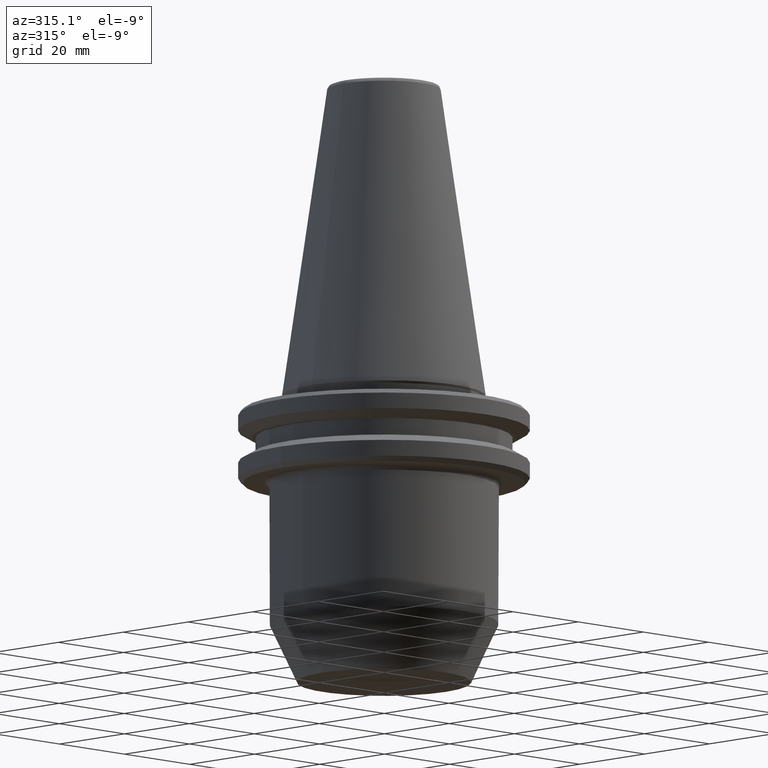
[diagram: clean part render]
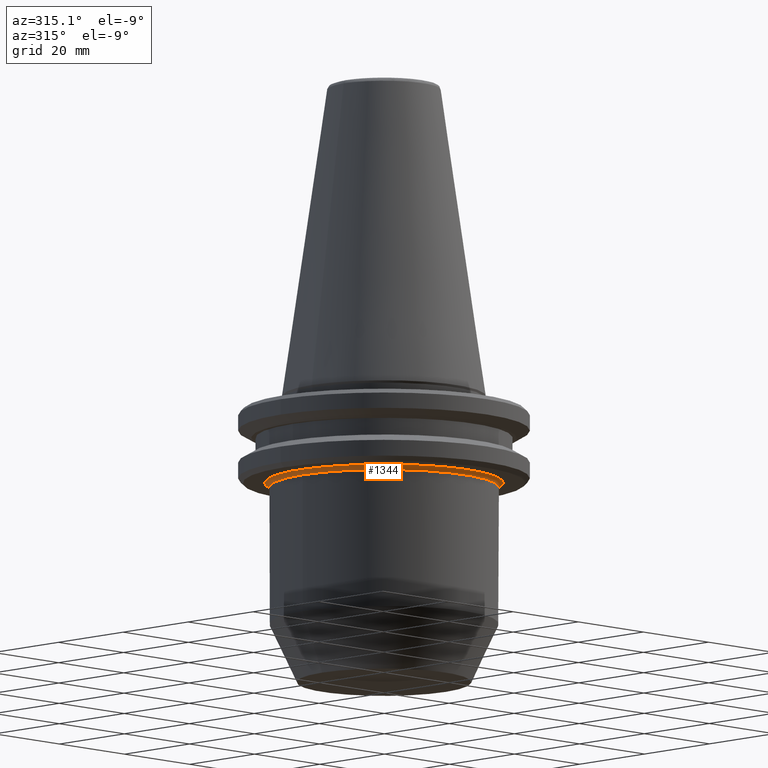
[diagram: same view with one face highlighted and labeled with its STEP entity id]
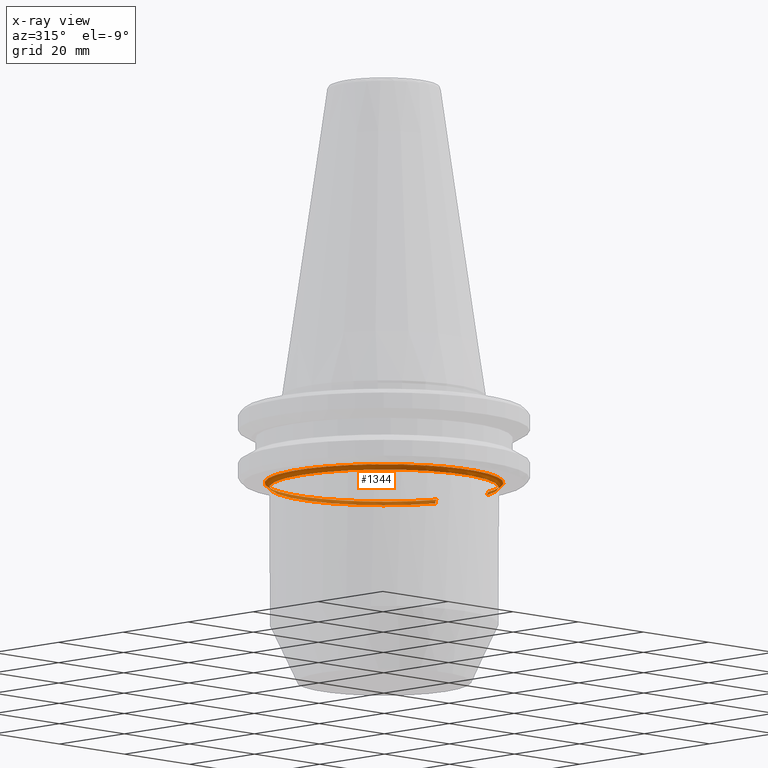
[diagram: x-ray of the same camera — body ghosted, the highlighted face saturated]
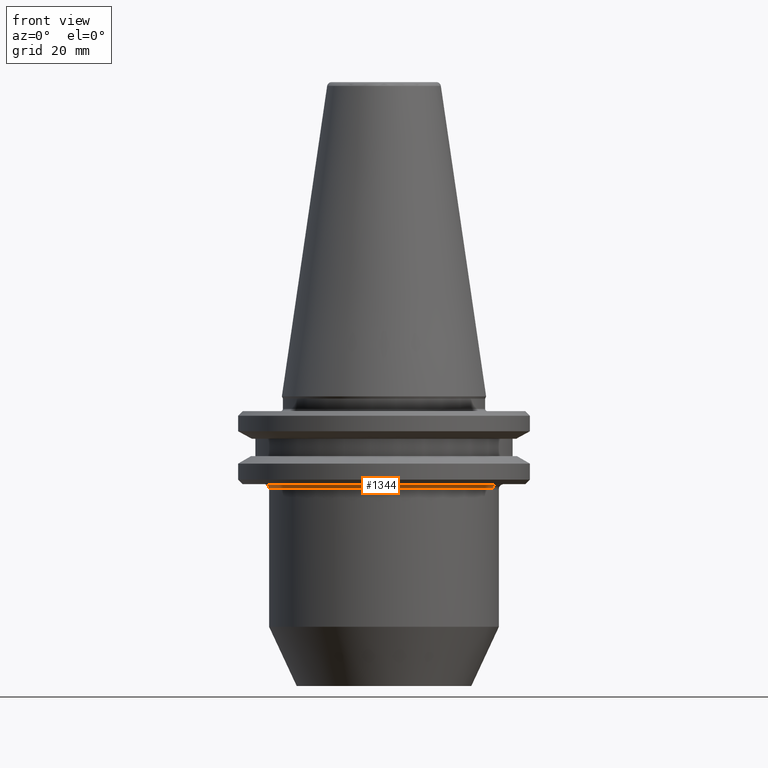
[diagram: same view with one face highlighted and labeled with its STEP entity id]
A machine part, auxiliary view. The second image highlights one B-rep face of the part: STEP entity #1344.
The next image is the same camera in x-ray: the body ghosted, the highlighted face saturated — about 30% of this face is hidden behind the body in this view.
A second angle (front view) of the same face is appended — the face is thin or edge-on in the first view.
In plain terms, the highlighted face is a freeform B-spline surface patch.
Its self-contained STEP definition (entity closure, byte-faithful):
#2 = CARTESIAN_POINT ( 'NONE',  ( 21.08986678564064800, -15.20589655215031600, -19.10000000000000100 ) ) ;
#4 = CARTESIAN_POINT ( 'NONE',  ( 21.06357977021266900, -15.24229216683390600, -19.10000000000000500 ) ) ;
#5 = CARTESIAN_POINT ( 'NONE',  ( 21.01217869184344200, -15.31307514466165100, -19.10000000000000500 ) ) ;
#8 = CARTESIAN_POINT ( 'NONE',  ( 20.93482601209489900, -15.41903522698955700, -19.10000000000000100 ) ) ;
#10 = CARTESIAN_POINT ( 'NONE',  ( 20.75257899065204400, -15.66477472819203400, -19.10000000000000900 ) ) ;
#11 = CARTESIAN_POINT ( 'NONE',  ( 20.38105520631459200, -16.15025096701302200, -19.10000000000000500 ) ) ;
#12 = CARTESIAN_POINT ( 'NONE',  ( 19.60988867183271400, -17.09719239031935300, -19.10000000000000500 ) ) ;
#15 = CARTESIAN_POINT ( 'NONE',  ( 18.90068484375061100, -17.86769466000643900, -19.10000000000000500 ) ) ;
#18 = CARTESIAN_POINT ( 'NONE',  ( 18.34468000199737500, -18.42499045855544200, -19.10000000000000500 ) ) ;
#24 = CARTESIAN_POINT ( 'NONE',  ( 18.28089176897799100, -18.48828909787250700, -19.10000000000000500 ) ) ;
#26 = CARTESIAN_POINT ( 'NONE',  ( 18.15444972419174300, -18.61247392118095700, -19.10000000000000100 ) ) ;
#29 = CARTESIAN_POINT ( 'NONE',  ( 17.96391116099587700, -18.79771558474064700, -19.10000000000000500 ) ) ;
#31 = CARTESIAN_POINT ( 'NONE',  ( 24.02038785661411100, -6.929716243673013300, -19.51421356237310400 ) ) ;
#32 = CARTESIAN_POINT ( 'NONE',  ( 17.51319270809000300, -19.22269713322589300, -19.10000000000000500 ) ) ;
#33 = CARTESIAN_POINT ( 'NONE',  ( 16.58724191381627100, -20.04366423091353200, -19.10000000000000500 ) ) ;
#36 = CARTESIAN_POINT ( 'NONE',  ( 15.75154599564680100, -20.69764288730368000, -19.10000000000001200 ) ) ;
#37 = CARTESIAN_POINT ( 'NONE',  ( 13.83078948215775500, -45.85744366741297300, -19.10000000000000500 ) ) ;
#40 = CARTESIAN_POINT ( 'NONE',  ( 14.02412241425182900, -21.93932363029458800, -19.09999999999999800 ) ) ;
#44 = CARTESIAN_POINT ( 'NONE',  ( -18.99261454395822600, -17.75636746634904400, -19.10000000000000500 ) ) ;
#46 = CARTESIAN_POINT ( 'NONE',  ( -19.17139524099740200, -17.56451807996877100, -19.09999999999999800 ) ) ;
#48 = CARTESIAN_POINT ( 'NONE',  ( -19.58137120720936900, -17.11104614209958200, -19.10000000000000500 ) ) ;
#52 = CARTESIAN_POINT ( 'NONE',  ( -20.37260716544883000, -16.18080878776686800, -19.10000000000000900 ) ) ;
#53 = CARTESIAN_POINT ( 'NONE',  ( -21.00158203105213100, -15.34353080646283700, -19.09999999999999800 ) ) ;
#57 = CARTESIAN_POINT ( 'NONE',  ( -21.44869948809650500, -14.69560648168966900, -19.10000000000000500 ) ) ;
#58 = CARTESIAN_POINT ( 'NONE',  ( -21.49550636322783200, -14.62704469490636000, -19.10000000000001200 ) ) ;
#64 = CARTESIAN_POINT ( 'NONE',  ( -21.59090650262529500, -14.48586589484176400, -19.10000000000000500 ) ) ;
#65 = CARTESIAN_POINT ( 'NONE',  ( -21.73292025853827500, -14.27347227310506200, -19.10000000000000500 ) ) ;
#93 = CARTESIAN_POINT ( 'NONE',  ( -24.87081751016880900, -7.579078860645310600, -19.10000000000006200 ) ) ;
#94 = CARTESIAN_POINT ( 'NONE',  ( -24.67946047880618500, -8.207018732206732300, -19.10000000000000900 ) ) ;
#95 = B_SPLINE_CURVE_WITH_KNOTS ( 'NONE', 3,
 ( #883, #1216, #185, #1118, #987, #763, #1510, #936, #697, #797 ),
 .UNSPECIFIED., .F., .F.,
 ( 4, 2, 2, 2, 4 ),
 ( 0.0000000000000000000, 0.0003999521369544677000, 0.0007999042739089354000, 0.001199856410863403200, 0.001599808547817870800 ),
 .UNSPECIFIED. ) ;
#98 = CARTESIAN_POINT ( 'NONE',  ( -24.35774771690617500, -9.135490331354942500, -19.10000000000000500 ) ) ;
#100 = CARTESIAN_POINT ( 'NONE',  ( 21.31193190923805100, 14.89325728726105800, -19.09999999999999800 ) ) ;
#106 = CARTESIAN_POINT ( 'NONE',  ( 13.71377673508790800, 22.10921522283393200, -19.10000000000000500 ) ) ;
#111 = CARTESIAN_POINT ( 'NONE',  ( 7.693485881876853200, 24.83570103653474000, -19.10000000000000500 ) ) ;
#113 = CARTESIAN_POINT ( 'NONE',  ( -23.56816878157279800, -10.97967670554026800, -19.10000000000000900 ) ) ;
#114 = CARTESIAN_POINT ( 'NONE',  ( -3.024413081520043200, 25.82720100315830400, -19.10000000000000900 ) ) ;
#116 = CARTESIAN_POINT ( 'NONE',  ( -25.00000000000000000, 3.061616997868383400E-015, -20.10000000000000900 ) ) ;
#117 = CARTESIAN_POINT ( 'NONE',  ( -23.68855141308448600, -10.71916111727049200, -19.10000000000000900 ) ) ;
#119 = CARTESIAN_POINT ( 'NONE',  ( -8.787973090625419200, 24.47982668187035300, -19.10000000000000900 ) ) ;
#120 = CIRCLE ( 'NONE', #1054, 25.00000000000000000 ) ;
#121 = CARTESIAN_POINT ( 'NONE',  ( -23.92173103535806100, -10.19519033268852900, -19.10000000000000500 ) ) ;
#124 = CARTESIAN_POINT ( 'NONE',  ( 9.309139455098502900, -24.29406549653491600, -19.10000000000000500 ) ) ;
#126 = CARTESIAN_POINT ( 'NONE',  ( -18.50462024641615600, 18.26437132208178200, -19.10000000000000500 ) ) ;
#127 = CARTESIAN_POINT ( 'NONE',  ( 8.321525427968865100, -24.64229291214120100, -19.10000000000000100 ) ) ;
#128 = CARTESIAN_POINT ( 'NONE',  ( 7.569170516763039200, -24.87398675893136600, -19.10000000000000500 ) ) ;
#130 = CARTESIAN_POINT ( 'NONE',  ( 11.22663073801722800, -23.45145528720430400, -19.10000000000000100 ) ) ;
#131 = CARTESIAN_POINT ( 'NONE',  ( -22.90905400916465600, 12.30373866754533900, -19.10000000000000100 ) ) ;
#132 = CARTESIAN_POINT ( 'NONE',  ( 10.98991607323609700, -23.56430426665612300, -19.10000000000000500 ) ) ;
#135 = CARTESIAN_POINT ( 'NONE',  ( 10.43418557474635300, -23.81902117686026400, -19.10000000000001200 ) ) ;
#136 = EDGE_CURVE ( 'NONE', #290, #1049, #369, .T. ) ;
#137 = CARTESIAN_POINT ( 'NONE',  ( 12.81200440084446700, -22.66860169791274900, -19.10000000000000500 ) ) ;
#139 = CARTESIAN_POINT ( 'NONE',  ( 11.46168780979420800, -23.33746934526750700, -19.10000000000000500 ) ) ;
#146 = CARTESIAN_POINT ( 'NONE',  ( -18.87274369892771000, -17.88371245063601800, -19.10000000000000100 ) ) ;
#147 = CARTESIAN_POINT ( 'NONE',  ( -15.00607522852591900, -21.24432462045455900, -19.10000000000000500 ) ) ;
#148 = CARTESIAN_POINT ( 'NONE',  ( -14.13114984464067100, -21.84480886108765300, -19.10000000000000500 ) ) ;
#149 = CARTESIAN_POINT ( 'NONE',  ( -13.06982959351578100, -22.48118231550234500, -19.10000000000000900 ) ) ;
#151 = CARTESIAN_POINT ( 'NONE',  ( -12.52902597547198700, -22.78332116946204500, -19.10000000000000500 ) ) ;
#152 = CARTESIAN_POINT ( 'NONE',  ( -25.00000000000000400, 38.67962063333698800, -20.10000000000000100 ) ) ;
#153 = B_SPLINE_CURVE_WITH_KNOTS ( 'NONE', 3,
 ( #93, #94, #98, #121, #117, #113, #217, #214, #212, #222, #221, #218, #65, #64, #58, #57, #53, #52, #48, #46, #44, #146, #238, #230, #227, #147, #148, #149, #151, #154, #157, #252, #249, #241, #162, #256, #258, #261, #167, #169, #279, #277, #275, #271, #269, #263, #289, #286, #283, #295, #294, #291, #308, #307, #300, #322, #314, #309, #604, #613, #743, #633, #630, #717, #128, #127, #124, #135, #132, #130, #172, #139, #137, #40, #36, #33, #32, #29, #26, #24, #18, #15, #12, #11, #10, #8, #5, #4, #2, #1143, #646, #956, #416, #236, #701, #273, #1240, #1092, #1036, #1502 ),
 .UNSPECIFIED., .F., .F.,
 ( 4, 1, 1, 1, 1, 2, 2, 1, 1, 1, 2, 2, 1, 1, 1, 2, 2, 2, 1, 1, 1, 2, 2, 1, 1, 1, 1, 2, 2, 1, 1, 1, 1, 2, 2, 2, 1, 1, 1, 1, 2, 2, 1, 1, 1, 2, 2, 1, 1, 1, 2, 2, 2, 1, 1, 1, 2, 2, 1, 1, 1, 1, 2, 2, 1, 1, 1, 1, 2, 2, 4 ),
 ( 0.0000000000000000000, 0.03124999999999878600, 0.04687499999999818200, 0.05468749999999789100, 0.05859374999999766900, 0.06054687499999759200, 0.06249999999999751600, 0.09374999999999612800, 0.1093749999999955000, 0.1171874999999951600, 0.1210937499999949800, 0.1249999999999948000, 0.1562499999999931200, 0.1718749999999922300, 0.1796874999999917300, 0.1835937499999915900, 0.1874999999999914500, 0.2499999999999897900, 0.2812499999999890100, 0.2968749999999885600, 0.3046874999999884000, 0.3085937499999882300, 0.3124999999999880700, 0.3437499999999866200, 0.3593749999999859600, 0.3671874999999855700, 0.3710937499999852900, 0.3730468749999852300, 0.3749999999999851800, 0.4062499999999849600, 0.4218749999999848500, 0.4296874999999847300, 0.4335937499999846800, 0.4355468749999846800, 0.4374999999999846800, 0.4999999999999850100, 0.5312499999999852300, 0.5468749999999853500, 0.5546874999999853500, 0.5585937499999853500, 0.5605468749999854600, 0.5624999999999854600, 0.5937499999999860100, 0.6093749999999863400, 0.6171874999999864600, 0.6210937499999865700, 0.6249999999999865700, 0.6562499999999870100, 0.6718749999999872300, 0.6796874999999873400, 0.6835937499999874500, 0.6874999999999874500, 0.7499999999999896700, 0.7812499999999909000, 0.7968749999999913400, 0.8046874999999915600, 0.8085937499999917800, 0.8124999999999920100, 0.8437499999999927800, 0.8593749999999931200, 0.8671874999999932300, 0.8710937499999933400, 0.8730468749999933400, 0.8749999999999934500, 0.9062499999999956700, 0.9218749999999966700, 0.9296874999999973400, 0.9335937499999975600, 0.9355468749999977800, 0.9374999999999978900, 1.000000000000000000 ),
 .UNSPECIFIED. ) ;
#154 = CARTESIAN_POINT ( 'NONE',  ( -12.29507939077864100, -22.90937041974884600, -19.10000000000000100 ) ) ;
#157 = CARTESIAN_POINT ( 'NONE',  ( -12.13863197753158500, -22.99263906883302500, -19.10000000000000100 ) ) ;
#160 = CARTESIAN_POINT ( 'NONE',  ( 13.51917837060695300, 44.82426410723565600, -19.10000000000000500 ) ) ;
#162 = CARTESIAN_POINT ( 'NONE',  ( -9.277455411015266100, -24.29293804208997500, -19.10000000000000500 ) ) ;
#167 = CARTESIAN_POINT ( 'NONE',  ( -8.206333344085546600, -24.67099422968122000, -19.10000000000000100 ) ) ;
#169 = CARTESIAN_POINT ( 'NONE',  ( -8.163719542336055600, -24.68512617397029300, -19.09999999999999800 ) ) ;
#172 = CARTESIAN_POINT ( 'NONE',  ( 11.38411705923635800, -23.37540383659991900, -19.10000000000000500 ) ) ;
#185 = CARTESIAN_POINT ( 'NONE',  ( 24.45486838116941900, -8.050107080330933600, -19.12432824542802100 ) ) ;
#205 = ORIENTED_EDGE ( 'NONE', *, *, #491, .F. ) ;
#212 = CARTESIAN_POINT ( 'NONE',  ( -23.46367537207778000, -11.20079061624733700, -19.10000000000000100 ) ) ;
#214 = CARTESIAN_POINT ( 'NONE',  ( -23.48064599843652500, -11.16516434791484600, -19.10000000000000100 ) ) ;
#217 = CARTESIAN_POINT ( 'NONE',  ( -23.51576347798745200, -11.09101128536561200, -19.10000000000000100 ) ) ;
#218 = CARTESIAN_POINT ( 'NONE',  ( -22.05668051671936100, -13.77350920424072600, -19.10000000000000500 ) ) ;
#221 = CARTESIAN_POINT ( 'NONE',  ( -22.67378034395125800, -12.75607126059725800, -19.10000000000000500 ) ) ;
#222 = CARTESIAN_POINT ( 'NONE',  ( -23.15057330021246800, -11.85396135590606000, -19.10000000000000100 ) ) ;
#227 = CARTESIAN_POINT ( 'NONE',  ( -16.70955574495307900, -19.96999443291344200, -19.10000000000000500 ) ) ;
#230 = CARTESIAN_POINT ( 'NONE',  ( -17.76944083940506400, -19.03312722494909100, -19.10000000000000500 ) ) ;
#232 = CARTESIAN_POINT ( 'NONE',  ( 24.17987589767861300, 9.596387810395482300, -19.10000000000000500 ) ) ;
#235 = CIRCLE ( 'NONE', #1426, 25.00000000000000000 ) ;
#236 = CARTESIAN_POINT ( 'NONE',  ( 23.09226670845448800, -11.94822560283492600, -19.10000000000000500 ) ) ;
#237 = CARTESIAN_POINT ( 'NONE',  ( 21.16576763980792500, 15.10025959422688200, -19.10000000000000100 ) ) ;
#238 = CARTESIAN_POINT ( 'NONE',  ( -18.81324768613971400, -17.94629416872470200, -19.10000000000000500 ) ) ;
#239 = CARTESIAN_POINT ( 'NONE',  ( 12.09411975201280000, 23.01713454861715000, -19.10000000000000500 ) ) ;
#241 = CARTESIAN_POINT ( 'NONE',  ( -10.41240086286569200, -23.84205590179272200, -19.10000000000000900 ) ) ;
#243 = CARTESIAN_POINT ( 'NONE',  ( 6.015060941970268100, 25.31080303800463600, -19.10000000000000500 ) ) ;
#247 = CARTESIAN_POINT ( 'NONE',  ( -3.876893395368816700, 25.70956239486193700, -19.10000000000000500 ) ) ;
#249 = CARTESIAN_POINT ( 'NONE',  ( -11.36044160209599800, -23.39723844028214500, -19.10000000000000500 ) ) ;
#252 = CARTESIAN_POINT ( 'NONE',  ( -12.05908733248370100, -23.03445181637846100, -19.10000000000000500 ) ) ;
#253 =( BOUNDED_SURFACE ( )  B_SPLINE_SURFACE ( 3, 3, ( 
 ( #1222, #1336, #152, #1000, #293, #1113, #417 ),
 ( #1229, #537, #1338, #657, #1444, #770, #31 ),
 ( #894, #160, #1004, #304, #1121, #423, #1233 ),
 ( #543, #1342, #662, #1450, #778, #37, #898 ) ),
 .UNSPECIFIED., .F., .F., .F. ) 
 B_SPLINE_SURFACE_WITH_KNOTS ( ( 4, 4 ),
 ( 4, 3, 4 ),
 ( 0.0000000000000000000, 1.000000000000000000 ),
 ( 0.0000000000000000000, 0.5000000000000000000, 1.000000000000000000 ),
 .UNSPECIFIED. ) 
 GEOMETRIC_REPRESENTATION_ITEM ( )  RATIONAL_B_SPLINE_SURFACE ( (
 ( 1.000000000000000000, 0.4266481954763141100, 0.4266481954763141100, 1.000000000000000000, 0.4266481954763141100, 0.4266481954763141100, 1.000000000000000000),
 ( 0.8047378541243649400, 0.3433399532936415900, 0.3433399532936415900, 0.8047378541243649400, 0.3433399532936415900, 0.3433399532936415900, 0.8047378541243649400),
 ( 0.8047378541243649400, 0.3433399532936415900, 0.3433399532936415900, 0.8047378541243649400, 0.3433399532936415900, 0.3433399532936415900, 0.8047378541243649400),
 ( 1.000000000000000000, 0.4266481954763141100, 0.4266481954763141100, 1.000000000000000000, 0.4266481954763141100, 0.4266481954763141100, 1.000000000000000000) ) ) 
 REPRESENTATION_ITEM ( '' )  SURFACE ( )  );
#254 = CARTESIAN_POINT ( 'NONE',  ( -10.88461865241911800, 23.61658474934612400, -19.10000000000000500 ) ) ;
#256 = CARTESIAN_POINT ( 'NONE',  ( -8.702758204402957900, -24.50136122103900500, -19.10000000000000500 ) ) ;
#258 = CARTESIAN_POINT ( 'NONE',  ( -8.413603480925019100, -24.60131833771361400, -19.10000000000000500 ) ) ;
#259 = CARTESIAN_POINT ( 'NONE',  ( -18.69125597911880000, 18.07330926246293900, -19.10000000000000500 ) ) ;
#261 = CARTESIAN_POINT ( 'NONE',  ( -8.289293002254817500, -24.64324542925988500, -19.10000000000000100 ) ) ;
#263 = CARTESIAN_POINT ( 'NONE',  ( -4.328805773996675700, -25.63714608363350300, -19.10000000000000500 ) ) ;
#268 = CARTESIAN_POINT ( 'NONE',  ( -23.31499519051407900, 11.50755734536840100, -19.10000000000000900 ) ) ;
#269 = CARTESIAN_POINT ( 'NONE',  ( -4.454820050719939100, -25.61576575287729400, -19.10000000000000500 ) ) ;
#271 = CARTESIAN_POINT ( 'NONE',  ( -4.748326678287503100, -25.56374864306443600, -19.10000000000000500 ) ) ;
#273 = CARTESIAN_POINT ( 'NONE',  ( 23.18920190387675700, -11.75851531219646300, -19.09999999999999800 ) ) ;
#275 = CARTESIAN_POINT ( 'NONE',  ( -5.333233194275766000, -25.45119573791188800, -19.10000000000000900 ) ) ;
#277 = CARTESIAN_POINT ( 'NONE',  ( -6.494619269664811500, -25.19201518549941100, -19.10000000000000900 ) ) ;
#279 = CARTESIAN_POINT ( 'NONE',  ( -7.475646837276887200, -24.91144658267609200, -19.10000000000000100 ) ) ;
#282 = CARTESIAN_POINT ( 'NONE',  ( 23.68960742604233600, -7.987646712267640200, -20.10000000000000900 ) ) ;
#283 = CARTESIAN_POINT ( 'NONE',  ( -2.864806780242861200, -25.87503538772877200, -19.10000000000000900 ) ) ;
#286 = CARTESIAN_POINT ( 'NONE',  ( -4.201105064161559700, -25.65837792313284300, -19.10000000000000500 ) ) ;
#289 = CARTESIAN_POINT ( 'NONE',  ( -4.244746095725289200, -25.65119681162508800, -19.10000000000000500 ) ) ;
#290 = VERTEX_POINT ( 'NONE', #768 ) ;
#291 = CARTESIAN_POINT ( 'NONE',  ( 1.391627470223698400, -25.97731962421324100, -19.10000000000000900 ) ) ;
#293 = CARTESIAN_POINT ( 'NONE',  ( -25.00000000000000400, -38.67962063333698800, -20.10000000000000100 ) ) ;
#294 = CARTESIAN_POINT ( 'NONE',  ( 0.4094565652388628100, -26.00507345475256600, -19.10000000000001600 ) ) ;
#295 = CARTESIAN_POINT ( 'NONE',  ( -1.559542358538994700, -25.98633678268795700, -19.10000000000000900 ) ) ;
#300 = CARTESIAN_POINT ( 'NONE',  ( 3.387979061002612400, -25.77854725962171400, -19.10000000000000900 ) ) ;
#304 = CARTESIAN_POINT ( 'NONE',  ( -25.41421356237309600, 0.0000000000000000000, -19.10000000000000500 ) ) ;
#307 = CARTESIAN_POINT ( 'NONE',  ( 3.103295348428391200, -25.81506378564376900, -19.10000000000000500 ) ) ;
#308 = CARTESIAN_POINT ( 'NONE',  ( 2.533418551457181400, -25.87997636375031300, -19.10000000000000500 ) ) ;
#309 = CARTESIAN_POINT ( 'NONE',  ( 3.630311962267365200, -25.74534147087361500, -19.10000000000000500 ) ) ;
#314 = CARTESIAN_POINT ( 'NONE',  ( 3.591221482829588800, -25.75082059749956900, -19.10000000000000500 ) ) ;
#322 = CARTESIAN_POINT ( 'NONE',  ( 3.509931790839122500, -25.76202726911896000, -19.10000000000000100 ) ) ;
#362 = CARTESIAN_POINT ( 'NONE',  ( 23.48072692971287600, 11.16706523490091600, -19.10000000000000900 ) ) ;
#366 = CARTESIAN_POINT ( 'NONE',  ( 20.06166590491628600, 16.56475948703174000, -19.10000000000001200 ) ) ;
#369 =( BOUNDED_CURVE ( )  B_SPLINE_CURVE ( 3, ( #1184, #749, #1167, #653 ),
 .UNSPECIFIED., .F., .T. ) 
 B_SPLINE_CURVE_WITH_KNOTS ( ( 4, 4 ),
 ( 0.0000000000000000000, 1.000000000000000000 ),
 .UNSPECIFIED. ) 
 CURVE ( )  GEOMETRIC_REPRESENTATION_ITEM ( )  RATIONAL_B_SPLINE_CURVE ( ( 1.000000000000000000, 0.9710466028248412300, 0.9710466028248412300, 1.000000000000000000 ) ) 
 REPRESENTATION_ITEM ( '' )  );
#371 = CARTESIAN_POINT ( 'NONE',  ( 11.69982127879964800, 23.21900126361637700, -19.10000000000000100 ) ) ;
#373 = EDGE_CURVE ( 'NONE', #1180, #774, #120, .T. ) ;
#377 = CARTESIAN_POINT ( 'NONE',  ( 4.262024157727580600, 25.64930800252978600, -19.10000000000000900 ) ) ;
#379 = CARTESIAN_POINT ( 'NONE',  ( -4.079572649399104900, 25.67798123259734300, -19.10000000000000100 ) ) ;
#384 = CARTESIAN_POINT ( 'NONE',  ( -11.66994097967679200, 23.23403689302101300, -19.10000000000000500 ) ) ;
#390 = CARTESIAN_POINT ( 'NONE',  ( -19.93102210410323100, 16.72172476866129300, -19.10000000000000900 ) ) ;
#398 = CARTESIAN_POINT ( 'NONE',  ( -23.40831037709759600, 11.31604049901671900, -19.10000000000000100 ) ) ;
#416 = CARTESIAN_POINT ( 'NONE',  ( 22.95443483083144200, -12.21252523136457500, -19.10000000000000500 ) ) ;
#417 = CARTESIAN_POINT ( 'NONE',  ( 24.02038785661411100, -6.929716243673014200, -20.10000000000000900 ) ) ;
#423 = CARTESIAN_POINT ( 'NONE',  ( 13.51917837060695300, -44.82426410723565600, -19.10000000000000500 ) ) ;
#436 = EDGE_CURVE ( 'NONE', #1188, #1180, #235, .T. ) ;
#452 = FACE_OUTER_BOUND ( 'NONE', #708, .T. ) ;
#454 = CARTESIAN_POINT ( 'NONE',  ( -24.87081751016881600, 7.579078860645282100, -19.10000000000006200 ) ) ;
#488 = CARTESIAN_POINT ( 'NONE',  ( 23.30090885195205500, 11.53556717104765600, -19.10000000000000500 ) ) ;
#491 = EDGE_CURVE ( 'NONE', #1150, #1188, #95, .T. ) ;
#495 = CARTESIAN_POINT ( 'NONE',  ( 18.83439444525151500, 17.92540869126046500, -19.10000000000000500 ) ) ;
#498 = CARTESIAN_POINT ( 'NONE',  ( 10.91408803096724100, 23.60875012528328700, -19.10000000000000500 ) ) ;
#500 = CARTESIAN_POINT ( 'NONE',  ( 24.72240886321554500, 8.050000000000000700, -19.10000000000006200 ) ) ;
#502 = CARTESIAN_POINT ( 'NONE',  ( 3.841185110489998800, 25.71472565845437000, -19.10000000000000500 ) ) ;
#503 = CARTESIAN_POINT ( 'NONE',  ( 24.58729979548965600, 8.049999999999938500, -19.10000000000026100 ) ) ;
#508 = CARTESIAN_POINT ( 'NONE',  ( -4.833557470047196600, 25.55586363517212000, -19.10000000000000100 ) ) ;
#511 = CARTESIAN_POINT ( 'NONE',  ( 24.45444289024953500, 8.050106114395644500, -19.12447121610722800 ) ) ;
#514 = CARTESIAN_POINT ( 'NONE',  ( -11.90279111446720100, 23.11560785650694800, -19.10000000000000500 ) ) ;
#515 = CARTESIAN_POINT ( 'NONE',  ( -21.04630528232787500, 15.26786612501470900, -19.10000000000000900 ) ) ;
#521 = CARTESIAN_POINT ( 'NONE',  ( -24.01281806260950800, 10.05532717132180700, -19.10000000000000500 ) ) ;
#523 = ORIENTED_EDGE ( 'NONE', *, *, #1291, .F. ) ;
#537 = CARTESIAN_POINT ( 'NONE',  ( 13.29883604053630500, 44.09369583405095500, -19.51421356237310100 ) ) ;
#539 = CARTESIAN_POINT ( 'NONE',  ( 24.20368052419523200, 8.049240857882940900, -19.22053590849125700 ) ) ;
#543 = CARTESIAN_POINT ( 'NONE',  ( 24.98120337087867100, 7.206904893419932500, -19.10000000000000500 ) ) ;
#544 = B_SPLINE_CURVE_WITH_KNOTS ( 'NONE', 3,
 ( #1504, #719, #232, #1061, #362, #1177, #488, #1293, #605, #1400, #723, #1511, #843, #100, #953, #237, #1066, #366, #1181, #495, #1296, #610, #1406, #728, #1512, #847, #106, #958, #239, #1070, #371, #1185, #498, #1300, #615, #1409, #731, #1519, #850, #111, #963, #243, #1074, #377, #1191, #502, #1302, #624, #1413, #733, #1525, #855, #114, #968, #247, #1079, #379, #1199, #508, #1306, #628, #1420, #737, #1531, #861, #119, #971, #254, #1085, #384, #1201, #514, #1312, #632, #1424, #742, #1533, #865, #126, #977, #259, #1091, #390, #1207, #515, #1323, #636, #1428, #747, #1541, #868, #131, #982, #268, #1097, #398, #1213, #521, #1325, #643 ),
 .UNSPECIFIED., .F., .F.,
 ( 4, 1, 1, 1, 1, 2, 2, 1, 1, 1, 2, 2, 1, 1, 1, 2, 2, 2, 1, 1, 1, 2, 2, 1, 1, 1, 1, 2, 2, 1, 1, 1, 1, 2, 2, 2, 1, 1, 1, 1, 2, 2, 1, 1, 1, 2, 2, 1, 1, 1, 2, 2, 2, 1, 1, 1, 2, 2, 1, 1, 1, 1, 2, 2, 1, 1, 1, 1, 2, 2, 4 ),
 ( 0.0000000000000000000, 0.03124999999999927100, 0.04687499999999890400, 0.05468749999999868200, 0.05859374999999857800, 0.06054687499999852900, 0.06249999999999847300, 0.09374999999999773800, 0.1093749999999974300, 0.1171874999999972900, 0.1210937499999972200, 0.1249999999999971400, 0.1562499999999971400, 0.1718749999999971700, 0.1796874999999972200, 0.1835937499999972200, 0.1874999999999972000, 0.2499999999999965000, 0.2812499999999961700, 0.2968749999999960000, 0.3046874999999959500, 0.3085937499999958900, 0.3124999999999958900, 0.3437499999999955000, 0.3593749999999953400, 0.3671874999999952800, 0.3710937499999951700, 0.3730468749999951700, 0.3749999999999951700, 0.4062499999999955600, 0.4218749999999958400, 0.4296874999999959500, 0.4335937499999959500, 0.4355468749999959500, 0.4374999999999959500, 0.4999999999999970000, 0.5312499999999974500, 0.5468749999999977800, 0.5546874999999980000, 0.5585937499999980000, 0.5605468749999980000, 0.5624999999999981100, 0.5937499999999984500, 0.6093749999999986700, 0.6171874999999987800, 0.6210937499999988900, 0.6249999999999988900, 0.6562499999999991100, 0.6718749999999992200, 0.6796874999999992200, 0.6835937499999992200, 0.6874999999999993300, 0.7499999999999998900, 0.7812500000000002200, 0.7968750000000004400, 0.8046875000000004400, 0.8085937500000004400, 0.8125000000000004400, 0.8437500000000001100, 0.8593750000000000000, 0.8671874999999998900, 0.8710937499999998900, 0.8730468750000000000, 0.8750000000000000000, 0.9062499999999991100, 0.9218749999999985600, 0.9296874999999983300, 0.9335937499999982200, 0.9355468749999982200, 0.9374999999999981100, 1.000000000000000000 ),
 .UNSPECIFIED. ) ;
#545 = DIRECTION ( 'NONE',  ( -0.0000000000000000000, -0.0000000000000000000, -1.000000000000000000 ) ) ;
#549 = CARTESIAN_POINT ( 'NONE',  ( 24.08730228448525100, 8.048222752287605500, -19.29216104229223900 ) ) ;
#552 = CARTESIAN_POINT ( 'NONE',  ( 23.89188549645208300, 8.041804601503217900, -19.47442500965662000 ) ) ;
#559 = CARTESIAN_POINT ( 'NONE',  ( 23.81219213196541100, 8.036240334316840300, -19.58633897878896600 ) ) ;
#572 = CARTESIAN_POINT ( 'NONE',  ( 23.70837024473956200, 8.017589472939317100, -19.83208152319469900 ) ) ;
#582 = CARTESIAN_POINT ( 'NONE',  ( 0.0000000000000000000, 0.0000000000000000000, -20.10000000000000900 ) ) ;
#592 = DIRECTION ( 'NONE',  ( 1.000000000000000000, 0.0000000000000000000, 0.0000000000000000000 ) ) ;
#604 = CARTESIAN_POINT ( 'NONE',  ( 4.347389314199229900, -25.64304291823708200, -19.10000000000000500 ) ) ;
#605 = CARTESIAN_POINT ( 'NONE',  ( 23.24674546890363700, 11.64433757236813200, -19.10000000000000500 ) ) ;
#610 = CARTESIAN_POINT ( 'NONE',  ( 18.52973537065677000, 18.23887422062748300, -19.10000000000000900 ) ) ;
#611 = CARTESIAN_POINT ( 'NONE',  ( 23.68960742604233600, 7.987646712267640200, -20.10000000000000900 ) ) ;
#613 = CARTESIAN_POINT ( 'NONE',  ( 5.351095628112692500, -25.45944706135241000, -19.09999999999999400 ) ) ;
#615 = CARTESIAN_POINT ( 'NONE',  ( 8.814468432482282600, 24.46473306359758800, -19.10000000000000500 ) ) ;
#624 = CARTESIAN_POINT ( 'NONE',  ( 3.713104242667133500, 25.73352867932303300, -19.10000000000000100 ) ) ;
#626 = CARTESIAN_POINT ( 'NONE',  ( 23.68394448514636300, 8.004441752350752300, -19.96584715329773000 ) ) ;
#628 = CARTESIAN_POINT ( 'NONE',  ( -6.983892504680008000, 25.04859191050261900, -19.10000000000000900 ) ) ;
#630 = CARTESIAN_POINT ( 'NONE',  ( 7.326385013163037900, -24.94657565613503900, -19.10000000000000900 ) ) ;
#632 = CARTESIAN_POINT ( 'NONE',  ( -14.43821338271098900, 21.66905455158838500, -19.10000000000001200 ) ) ;
#633 = CARTESIAN_POINT ( 'NONE',  ( 7.081127242233479900, -25.01818280119997000, -19.10000000000000900 ) ) ;
#636 = CARTESIAN_POINT ( 'NONE',  ( -21.29917952524332100, 14.91130025569524300, -19.10000000000000100 ) ) ;
#643 = CARTESIAN_POINT ( 'NONE',  ( -24.87081751016881600, 7.579078860645282100, -19.10000000000006200 ) ) ;
#644 = CARTESIAN_POINT ( 'NONE',  ( 0.0000000000000000000, 0.0000000000000000000, -20.10000000000000900 ) ) ;
#646 = CARTESIAN_POINT ( 'NONE',  ( 22.07500275959962700, -13.76633436060338400, -19.10000000000000500 ) ) ;
#648 = DIRECTION ( 'NONE',  ( -0.0000000000000000000, -0.0000000000000000000, -1.000000000000000000 ) ) ;
#653 = CARTESIAN_POINT ( 'NONE',  ( -24.87081751016881600, 7.579078860645282100, -19.10000000000006200 ) ) ;
#657 = CARTESIAN_POINT ( 'NONE',  ( -25.00000000000000700, 8.673617379884035500E-016, -19.51421356237310400 ) ) ;
#662 = CARTESIAN_POINT ( 'NONE',  ( -26.00000000000000000, 40.22680545867046200, -19.10000000000000500 ) ) ;
#688 = ORIENTED_EDGE ( 'NONE', *, *, #748, .F. ) ;
#697 = CARTESIAN_POINT ( 'NONE',  ( 23.68393728557925500, -8.004463104687019400, -19.96567659837915800 ) ) ;
#701 = CARTESIAN_POINT ( 'NONE',  ( 23.15053484775988200, -11.83446471139458800, -19.10000000000000500 ) ) ;
#708 = EDGE_LOOP ( 'NONE', ( #1340, #205, #688, #1309, #523, #1363, #1190 ) ) ;
#717 = CARTESIAN_POINT ( 'NONE',  ( 7.489710231638334800, -24.89802142669987700, -19.10000000000000500 ) ) ;
#719 = CARTESIAN_POINT ( 'NONE',  ( 24.51916198707672500, 8.674192841251594300, -19.10000000000000100 ) ) ;
#723 = CARTESIAN_POINT ( 'NONE',  ( 22.42745865943133100, 13.18433794966514000, -19.10000000000000500 ) ) ;
#728 = CARTESIAN_POINT ( 'NONE',  ( 17.40480448883396700, 19.36713041242116200, -19.10000000000000500 ) ) ;
#731 = CARTESIAN_POINT ( 'NONE',  ( 7.944916241886564200, 24.75665351773663000, -19.10000000000000500 ) ) ;
#733 = CARTESIAN_POINT ( 'NONE',  ( 1.065790042382649800, 26.01126608484435100, -19.10000000000000500 ) ) ;
#737 = CARTESIAN_POINT ( 'NONE',  ( -7.798790337815547400, 24.80295191293166800, -19.10000000000000900 ) ) ;
#742 = CARTESIAN_POINT ( 'NONE',  ( -16.96487281838793800, 19.72506426771161300, -19.10000000000000500 ) ) ;
#743 = CARTESIAN_POINT ( 'NONE',  ( 6.506969507548247700, -25.17669674607023800, -19.10000000000000500 ) ) ;
#747 = CARTESIAN_POINT ( 'NONE',  ( -21.37481832780473600, 14.80266572088002200, -19.10000000000000500 ) ) ;
#748 = EDGE_CURVE ( 'NONE', #290, #1150, #153, .T. ) ;
#749 = CARTESIAN_POINT ( 'NONE',  ( -26.38761699199821800, -2.601687306114602600, -19.10000000000000500 ) ) ;
#763 = CARTESIAN_POINT ( 'NONE',  ( 23.89193597020295100, -8.041813164355337700, -19.47428892030301700 ) ) ;
#768 = CARTESIAN_POINT ( 'NONE',  ( -24.87081751016880900, -7.579078860645310600, -19.10000000000006200 ) ) ;
#770 = CARTESIAN_POINT ( 'NONE',  ( 13.29883604053630500, -44.09369583405095500, -19.51421356237310100 ) ) ;
#774 = VERTEX_POINT ( 'NONE', #1104 ) ;
#778 = CARTESIAN_POINT ( 'NONE',  ( -26.00000000000000000, -40.22680545867046200, -19.10000000000000500 ) ) ;
#797 = CARTESIAN_POINT ( 'NONE',  ( 23.68960742604233600, -7.987646712267640200, -20.10000000000000900 ) ) ;
#832 = CARTESIAN_POINT ( 'NONE',  ( 24.72240886321554500, 8.050000000000000700, -19.10000000000006200 ) ) ;
#843 = CARTESIAN_POINT ( 'NONE',  ( 21.45795333507312100, 14.68359875388451900, -19.10000000000000500 ) ) ;
#844 = CARTESIAN_POINT ( 'NONE',  ( 24.72240886321557300, -8.050000000000000700, -19.10000000000006200 ) ) ;
#847 = CARTESIAN_POINT ( 'NONE',  ( 14.59994733067662800, 21.52545377651681600, -19.10000000000000500 ) ) ;
#850 = CARTESIAN_POINT ( 'NONE',  ( 7.736360360007823900, 24.82238086113714500, -19.10000000000000500 ) ) ;
#855 = CARTESIAN_POINT ( 'NONE',  ( -1.884676400550171900, 25.94620890881312300, -19.10000000000000500 ) ) ;
#861 = CARTESIAN_POINT ( 'NONE',  ( -8.040153625670992500, 24.72576569635302200, -19.10000000000000100 ) ) ;
#865 = CARTESIAN_POINT ( 'NONE',  ( -18.31763371295803500, 18.45319784110708000, -19.10000000000000900 ) ) ;
#868 = CARTESIAN_POINT ( 'NONE',  ( -22.33243989929686500, 13.34465573585295300, -19.10000000000000500 ) ) ;
#878 = VERTEX_POINT ( 'NONE', #832 ) ;
#883 = CARTESIAN_POINT ( 'NONE',  ( 24.72240886321557300, -8.050000000000000700, -19.10000000000006200 ) ) ;
#894 = CARTESIAN_POINT ( 'NONE',  ( 24.41837067356096800, 7.044531541734072800, -19.10000000000000500 ) ) ;
#898 = CARTESIAN_POINT ( 'NONE',  ( 24.98120337087867100, -7.206904893419932500, -19.10000000000000500 ) ) ;
#922 = B_SPLINE_CURVE_WITH_KNOTS ( 'NONE', 3,
 ( #611, #626, #572, #559, #552, #549, #539, #511, #503, #500 ),
 .UNSPECIFIED., .F., .F.,
 ( 4, 2, 2, 2, 4 ),
 ( 0.0000000000000000000, 0.0004001825908841812200, 0.0008003651817683624500, 0.001200547772652543700, 0.001600730363536724900 ),
 .UNSPECIFIED. ) ;
#936 = CARTESIAN_POINT ( 'NONE',  ( 23.70864881038654600, -8.017673391126670900, -19.83112451318790500 ) ) ;
#953 = CARTESIAN_POINT ( 'NONE',  ( 21.21386803818492000, 15.03259901603476200, -19.10000000000000100 ) ) ;
#955 = EDGE_CURVE ( 'NONE', #774, #878, #922, .T. ) ;
#956 = CARTESIAN_POINT ( 'NONE',  ( 22.67127953194341600, -12.73655468243256900, -19.10000000000000500 ) ) ;
#958 = CARTESIAN_POINT ( 'NONE',  ( 12.64056335978020400, 22.72531984052482200, -19.10000000000000900 ) ) ;
#963 = CARTESIAN_POINT ( 'NONE',  ( 7.001239507219423800, 25.04891438445155000, -19.10000000000000500 ) ) ;
#968 = CARTESIAN_POINT ( 'NONE',  ( -3.592954452360042500, 25.75147837658503000, -19.10000000000000500 ) ) ;
#971 = CARTESIAN_POINT ( 'NONE',  ( -9.768796319566876100, 24.11290762664043500, -19.10000000000000900 ) ) ;
#977 = CARTESIAN_POINT ( 'NONE',  ( -18.62868126653975400, 18.13780780318638400, -19.10000000000000500 ) ) ;
#982 = CARTESIAN_POINT ( 'NONE',  ( -23.18220712064060500, 11.77442669285083500, -19.10000000000000900 ) ) ;
#987 = CARTESIAN_POINT ( 'NONE',  ( 24.08796482292678900, -8.048237582005491200, -19.29163243424555700 ) ) ;
#1000 = CARTESIAN_POINT ( 'NONE',  ( -25.00000000000000400, 8.673617379884035500E-016, -20.10000000000000900 ) ) ;
#1004 = CARTESIAN_POINT ( 'NONE',  ( -25.41421356237309600, 39.32048557148797100, -19.10000000000000500 ) ) ;
#1036 = CARTESIAN_POINT ( 'NONE',  ( 24.31581022605418600, -9.298707795171454300, -19.10000000000000900 ) ) ;
#1049 = VERTEX_POINT ( 'NONE', #454 ) ;
#1054 = AXIS2_PLACEMENT_3D ( 'NONE', #644, #648, #1086 ) ;
#1061 = CARTESIAN_POINT ( 'NONE',  ( 23.72381452013185000, 10.64761692877971200, -19.10000000000000100 ) ) ;
#1066 = CARTESIAN_POINT ( 'NONE',  ( 20.70642695902089500, 15.73957648751714600, -19.10000000000000100 ) ) ;
#1070 = CARTESIAN_POINT ( 'NONE',  ( 11.85782172294529600, 23.13871850906679100, -19.10000000000000900 ) ) ;
#1074 = CARTESIAN_POINT ( 'NONE',  ( 4.848962542480540700, 25.54788255523024200, -19.10000000000000500 ) ) ;
#1079 = CARTESIAN_POINT ( 'NONE',  ( -3.998510426141597100, 25.69072954517280000, -19.10000000000000900 ) ) ;
#1085 = CARTESIAN_POINT ( 'NONE',  ( -11.43541196028371600, 23.35136064915076700, -19.10000000000000100 ) ) ;
#1086 = DIRECTION ( 'NONE',  ( 1.000000000000000000, 0.0000000000000000000, 0.0000000000000000000 ) ) ;
#1091 = CARTESIAN_POINT ( 'NONE',  ( -19.23657771756521500, 17.50555562505511300, -19.10000000000000100 ) ) ;
#1092 = CARTESIAN_POINT ( 'NONE',  ( 23.81754107327016400, -10.50950869705199500, -19.10000000000001200 ) ) ;
#1097 = CARTESIAN_POINT ( 'NONE',  ( -23.37109254491746300, 11.39271047641839700, -19.10000000000000900 ) ) ;
#1104 = CARTESIAN_POINT ( 'NONE',  ( 23.68960742604233600, 7.987646712267640200, -20.10000000000000900 ) ) ;
#1113 = CARTESIAN_POINT ( 'NONE',  ( 13.29883604053630300, -44.09369583405095500, -20.10000000000000100 ) ) ;
#1118 = CARTESIAN_POINT ( 'NONE',  ( 24.20353594625012800, -8.049240860677835800, -19.22057128644139100 ) ) ;
#1121 = CARTESIAN_POINT ( 'NONE',  ( -25.41421356237309600, -39.32048557148797100, -19.10000000000000500 ) ) ;
#1143 = CARTESIAN_POINT ( 'NONE',  ( 21.51253779833169600, -14.61766684366662400, -19.10000000000000500 ) ) ;
#1150 = VERTEX_POINT ( 'NONE', #844 ) ;
#1167 = CARTESIAN_POINT ( 'NONE',  ( -26.38761699199821800, 2.601687306114595500, -19.10000000000000500 ) ) ;
#1177 = CARTESIAN_POINT ( 'NONE',  ( 23.35541890909202000, 11.42524782469379100, -19.10000000000000100 ) ) ;
#1180 = VERTEX_POINT ( 'NONE', #116 ) ;
#1181 = CARTESIAN_POINT ( 'NONE',  ( 19.25290775228088000, 17.47980381793868400, -19.10000000000000500 ) ) ;
#1184 = CARTESIAN_POINT ( 'NONE',  ( -24.87081751016880900, -7.579078860645310600, -19.10000000000006200 ) ) ;
#1185 = CARTESIAN_POINT ( 'NONE',  ( 11.61949696831999600, 23.25929594757294100, -19.10000000000000100 ) ) ;
#1188 = VERTEX_POINT ( 'NONE', #282 ) ;
#1190 = ORIENTED_EDGE ( 'NONE', *, *, #373, .F. ) ;
#1191 = CARTESIAN_POINT ( 'NONE',  ( 3.967582669099077200, 25.69574214835124000, -19.10000000000000500 ) ) ;
#1199 = CARTESIAN_POINT ( 'NONE',  ( -4.118552033440281900, 25.67176077995259600, -19.10000000000000100 ) ) ;
#1201 = CARTESIAN_POINT ( 'NONE',  ( -11.82595471362638900, 23.15500854790840200, -19.10000000000001200 ) ) ;
#1207 = CARTESIAN_POINT ( 'NONE',  ( -20.68406750846411400, 15.76030992479761000, -19.10000000000000500 ) ) ;
#1213 = CARTESIAN_POINT ( 'NONE',  ( -23.42752133878628100, 11.27620883862316800, -19.10000000000000500 ) ) ;
#1216 = CARTESIAN_POINT ( 'NONE',  ( 24.58720856015185400, -8.050000000000004300, -19.10000000000000500 ) ) ;
#1222 = CARTESIAN_POINT ( 'NONE',  ( 24.02038785661411100, 6.929716243673012400, -20.10000000000000900 ) ) ;
#1229 = CARTESIAN_POINT ( 'NONE',  ( 24.02038785661411100, 6.929716243673013300, -19.51421356237310400 ) ) ;
#1233 = CARTESIAN_POINT ( 'NONE',  ( 24.41837067356096800, -7.044531541734073700, -19.10000000000000500 ) ) ;
#1240 = CARTESIAN_POINT ( 'NONE',  ( 23.20916579022585000, -11.71905564340994000, -19.10000000000000100 ) ) ;
#1291 = EDGE_CURVE ( 'NONE', #878, #1049, #544, .T. ) ;
#1293 = CARTESIAN_POINT ( 'NONE',  ( 23.26438956502963200, 11.60903999417557500, -19.10000000000000100 ) ) ;
#1296 = CARTESIAN_POINT ( 'NONE',  ( 18.65200283565786100, 18.11382850294158700, -19.10000000000000100 ) ) ;
#1300 = CARTESIAN_POINT ( 'NONE',  ( 9.957771319739656200, 24.03548442816969600, -19.10000000000001200 ) ) ;
#1302 = CARTESIAN_POINT ( 'NONE',  ( 3.756873771595754500, 25.72717759005509900, -19.10000000000000100 ) ) ;
#1306 = CARTESIAN_POINT ( 'NONE',  ( -5.833596377575325700, 25.35324086570786100, -19.10000000000000100 ) ) ;
#1309 = ORIENTED_EDGE ( 'NONE', *, *, #136, .T. ) ;
#1312 = CARTESIAN_POINT ( 'NONE',  ( -13.24016266334891900, 22.42121879725164400, -19.10000000000000500 ) ) ;
#1323 = CARTESIAN_POINT ( 'NONE',  ( -21.22385293718056300, 15.01871013066049400, -19.10000000000000500 ) ) ;
#1325 = CARTESIAN_POINT ( 'NONE',  ( -24.48800469828426100, 8.835282650049407500, -19.10000000000000100 ) ) ;
#1336 = CARTESIAN_POINT ( 'NONE',  ( 13.29883604053630500, 44.09369583405095500, -20.10000000000000100 ) ) ;
#1338 = CARTESIAN_POINT ( 'NONE',  ( -25.00000000000000400, 38.67962063333698800, -19.51421356237310100 ) ) ;
#1340 = ORIENTED_EDGE ( 'NONE', *, *, #436, .F. ) ;
#1342 = CARTESIAN_POINT ( 'NONE',  ( 13.83078948215775500, 45.85744366741297300, -19.10000000000000500 ) ) ;
#1344 = ADVANCED_FACE ( 'NONE', ( #452 ), #253, .F. ) ;
#1363 = ORIENTED_EDGE ( 'NONE', *, *, #955, .F. ) ;
#1400 = CARTESIAN_POINT ( 'NONE',  ( 22.92129638022202400, 12.29144483801565900, -19.10000000000000900 ) ) ;
#1406 = CARTESIAN_POINT ( 'NONE',  ( 18.46906168205481800, 18.30031484633237300, -19.10000000000000100 ) ) ;
#1409 = CARTESIAN_POINT ( 'NONE',  ( 8.235916974480632600, 24.66220536849333200, -19.10000000000001200 ) ) ;
#1413 = CARTESIAN_POINT ( 'NONE',  ( 2.372932672636082000, 25.92477125713899600, -19.10000000000000100 ) ) ;
#1420 = CARTESIAN_POINT ( 'NONE',  ( -7.554936585312817400, 24.87920350185908400, -19.10000000000000900 ) ) ;
#1424 = CARTESIAN_POINT ( 'NONE',  ( -16.14174640964697400, 20.39479456111707400, -19.10000000000000100 ) ) ;
#1426 = AXIS2_PLACEMENT_3D ( 'NONE', #582, #545, #592 ) ;
#1428 = CARTESIAN_POINT ( 'NONE',  ( -21.34922719194805700, 14.83955395360113300, -19.10000000000000900 ) ) ;
#1444 = CARTESIAN_POINT ( 'NONE',  ( -25.00000000000000400, -38.67962063333698800, -19.51421356237310100 ) ) ;
#1450 = CARTESIAN_POINT ( 'NONE',  ( -26.00000000000000400, 0.0000000000000000000, -19.10000000000000500 ) ) ;
#1502 = CARTESIAN_POINT ( 'NONE',  ( 24.72240886321557300, -8.050000000000000700, -19.10000000000006200 ) ) ;
#1504 = CARTESIAN_POINT ( 'NONE',  ( 24.72240886321554500, 8.050000000000000700, -19.10000000000006200 ) ) ;
#1510 = CARTESIAN_POINT ( 'NONE',  ( 23.81253667404865800, -8.036268148966886600, -19.58582290854307600 ) ) ;
#1511 = CARTESIAN_POINT ( 'NONE',  ( 21.79114933014248100, 14.18987392782731900, -19.10000000000000500 ) ) ;
#1512 = CARTESIAN_POINT ( 'NONE',  ( 16.32731974419209600, 20.28370185186838600, -19.10000000000000500 ) ) ;
#1519 = CARTESIAN_POINT ( 'NONE',  ( 7.819831998576271200, 24.79621243815421400, -19.10000000000000500 ) ) ;
#1525 = CARTESIAN_POINT ( 'NONE',  ( -0.9032096352219720600, 25.99260880367436100, -19.10000000000000100 ) ) ;
#1531 = CARTESIAN_POINT ( 'NONE',  ( -7.961164078392627600, 24.75130495216857800, -19.10000000000000500 ) ) ;
#1533 = CARTESIAN_POINT ( 'NONE',  ( -17.87506677864672300, 18.88666173694144500, -19.10000000000000500 ) ) ;
#1541 = CARTESIAN_POINT ( 'NONE',  ( -21.78624285612573900, 14.20651571254848900, -19.10000000000000100 ) ) ;